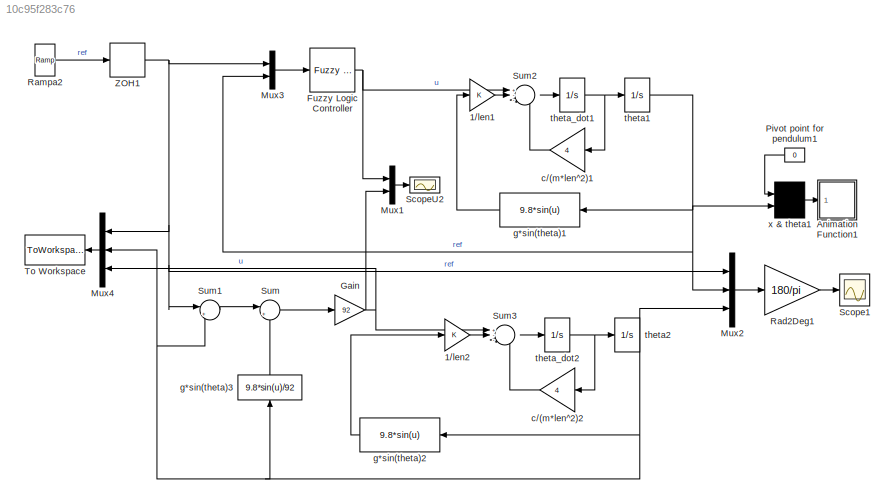
MODEL slx_10c95f283c76
KIND model
CONFIG AbsTol = 1e-6
CONFIG EnableMultiTasking = off
CONFIG FixedStep = auto
CONFIG MaxStep = .5
CONFIG MinStep = auto
CONFIG RelTol = 1e-3
CONFIG SampleTimeConstraint = Unconstrained
CONFIG Solver = ode45
CONFIG SolverName = ode45
CONFIG StartTime = 0
CONFIG StopTime = 190
BLOCK [Gain] 1//len1
BLOCK [Gain] 1//len2
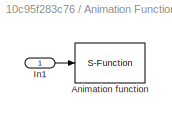
BLOCK [SubSystem] Animation Function1
  Ports = [1]
  RequestExecContextInheritance = off
BLOCK [S-Function] Animation Function1/Animation function
  DeleteFcn = if ~isempty(findobj('type','figure','name','simppend Animation'));close('simppend Animation'); end;
  EnableBusSupport = off
  FunctionName = pndanim1
  Parameters = ts
  Ports = [1]
  SFcnIsStateOwnerBlock = off
  SFunctionDeploymentMode = off
BLOCK [Inport] Animation Function1/In1
  IconDisplay = Port number
BLOCK [Reference] Fuzzy Logic Controller  REF=fuzblock/Fuzzy Logic   (lib defined in mdl_858b3b3e7478)
Controller
  Ports = [1, 1]
  SourceBlock = fuzblock/Fuzzy Logic \nController
  SourceProductBaseCode = FL
  SourceProductName = Fuzzy Logic Toolbox
  SourceType = Fuzzy Inference System
BLOCK [Gain] Gain
  Gain = 92
  OutDataTypeStr = Inherit: Inherit via internal rule
  ParamDataTypeStr = Inherit: Inherit via internal rule
  SaturateOnIntegerOverflow = off
BLOCK [Mux] Mux1
  DisplayOption = bar
  Inputs = 2
  Ports = [2, 1]
BLOCK [Mux] Mux2
  DisplayOption = bar
  Inputs = 3
  Ports = [3, 1]
BLOCK [Mux] Mux3
  DisplayOption = bar
  Inputs = 2
  Ports = [2, 1]
BLOCK [Mux] Mux4
  DisplayOption = bar
  Inputs = 3
  Ports = [3, 1]
BLOCK [Constant] Pivot point for pendulum1
  Value = 0
BLOCK [Gain] Rad2Deg1
  Gain = 180/pi
BLOCK [Reference] Rampa2  REF=simulink/Sources/Ramp
  Ports = [0, 1]
  SourceBlock = simulink/Sources/Ramp
  SourceProductBaseCode = SL
  SourceProductName = Simulink
  SourceType = Ramp
BLOCK [Scope] Scope1
  Floating = off
  NumInputPorts = 1
  Ports = [1]
  ScopeSpecificationString = Simulink.scopes.TimeScopeBlockCfg('CurrentConfiguration', extmgr.ConfigurationSet(extmgr.Configuration('Core','General UI',true),extmgr.Configuration('Core','Source UI',true),extmgr.Configuration('Sources','WiredSimulink',true,'DataLoggingSaveFormat','StructureWithTime','DataLoggingLimitDataPoints',true,'DataLoggingDecimation','1','DataLoggingDecimateData',true,'DataLoggingVariableName','ScopeData...<+1781ch>
BLOCK [Scope] ScopeU2
  Floating = off
  NumInputPorts = 1
  Ports = [1]
  ScopeSpecificationString = Simulink.scopes.TimeScopeBlockCfg('CurrentConfiguration', extmgr.ConfigurationSet(extmgr.Configuration('Core','General UI',true),extmgr.Configuration('Core','Source UI',true),extmgr.Configuration('Sources','WiredSimulink',true,'DataLoggingVariableName','ScopeData3','DataLoggingSaveFormat','StructureWithTime','DataLoggingLimitDataPoints',true,'DataLoggingDecimation','1','DataLoggingDecimateData',tr...<+1754ch>
BLOCK [Sum] Sum
  IconShape = round
  InputSameDT = off
  Inputs = |++
  OutDataTypeStr = Inherit: Inherit via internal rule
  Ports = [2, 1]
  SaturateOnIntegerOverflow = off
BLOCK [Sum] Sum1
  IconShape = round
  InputSameDT = off
  Inputs = |+-
  OutDataTypeStr = Inherit: Inherit via internal rule
  Ports = [2, 1]
  SaturateOnIntegerOverflow = off
BLOCK [Sum] Sum2
  IconShape = round
  Inputs = +--
  Ports = [3, 1]
BLOCK [Sum] Sum3
  IconShape = round
  Inputs = +--
  Ports = [3, 1]
BLOCK [ToWorkspace] To Workspace
  MaxDataPoints = inf
  Ports = [1]
  SampleTime = -1
  VariableName = PT
BLOCK [ZeroOrderHold] ZOH1
  SampleTime = 10
BLOCK [Gain] c//(m*len^2)1
  Gain = 4
BLOCK [Gain] c//(m*len^2)2
  Gain = 4
BLOCK [Fcn] g*sin(theta)1
  Expr = 9.8*sin(u)
BLOCK [Fcn] g*sin(theta)2
  Expr = 9.8*sin(u)
BLOCK [Fcn] g*sin(theta)3
  Expr = 9.8*sin(u)/92
BLOCK [Integrator] theta1
  InitialCondition = pi
  LowerSaturationLimit = -200
  Ports = [1, 1]
  UpperSaturationLimit = 200
BLOCK [Integrator] theta2
  InitialCondition = pi
  LowerSaturationLimit = -200
  Ports = [1, 1]
  UpperSaturationLimit = 200
BLOCK [Integrator] theta_dot1
  InitialCondition = -.1
  LowerSaturationLimit = -200
  Ports = [1, 1]
  UpperSaturationLimit = 200
BLOCK [Integrator] theta_dot2
  InitialCondition = -.1
  LowerSaturationLimit = -200
  Ports = [1, 1]
  UpperSaturationLimit = 200
BLOCK [Mux] x & theta1
  Inputs = 2
  Ports = [2, 1]
LINE 1//len1:1 -> Sum2:2
LINE 1//len2:1 -> Sum3:2
LINE Animation Function1/In1:1 -> Animation Function1/Animation function:1
NET Fuzzy Logic Controller:1 -> Mux1:1, Sum2:1
NET Gain:1 -> Mux1:2, Mux4:3, Sum3:1
LINE Mux1:1 -> ScopeU2:1
LINE Mux2:1 -> Rad2Deg1:1
LINE Mux3:1 -> Fuzzy Logic Controller:1
LINE Mux4:1 -> To Workspace:1
LINE Pivot point for pendulum1:1 -> x & theta1:1
LINE Rad2Deg1:1 -> Scope1:1
LINE Rampa2:1 -> ZOH1:1
LINE Sum1:1 -> Sum:1
LINE Sum2:1 -> theta_dot1:1
LINE Sum3:1 -> theta_dot2:1
LINE Sum:1 -> Gain:1
NET ZOH1:1 -> Mux2:1, Mux3:1, Mux4:1, Sum1:1
LINE c//(m*len^2)1:1 -> Sum2:3
LINE c//(m*len^2)2:1 -> Sum3:3
LINE g*sin(theta)1:1 -> 1//len1:1
LINE g*sin(theta)2:1 -> 1//len2:1
LINE g*sin(theta)3:1 -> Sum:2
NET theta1:1 -> Mux2:2, Mux3:2, g*sin(theta)1:1, x & theta1:2
NET theta2:1 -> Mux2:3, Mux4:2, Sum1:2, g*sin(theta)2:1, g*sin(theta)3:1
NET theta_dot1:1 -> c//(m*len^2)1:1, theta1:1
NET theta_dot2:1 -> c//(m*len^2)2:1, theta2:1
LINE x & theta1:1 -> Animation Function1:1
note: NET lines group one-source signal fan-out (src -> all destinations, sorted); 1:1 wires keep LINE
